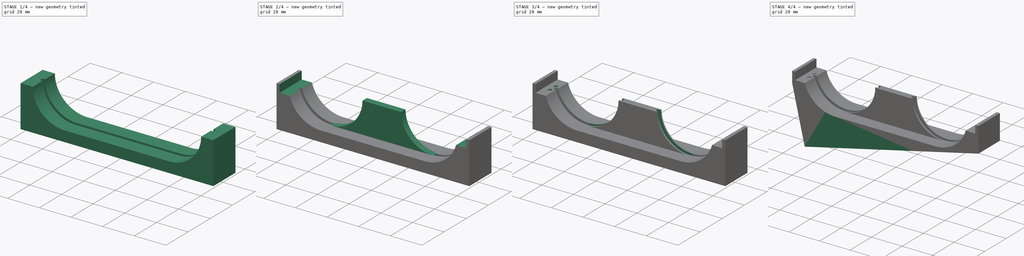
[diagram: build sequence overview — one tinted view per stage of 4, left to right]
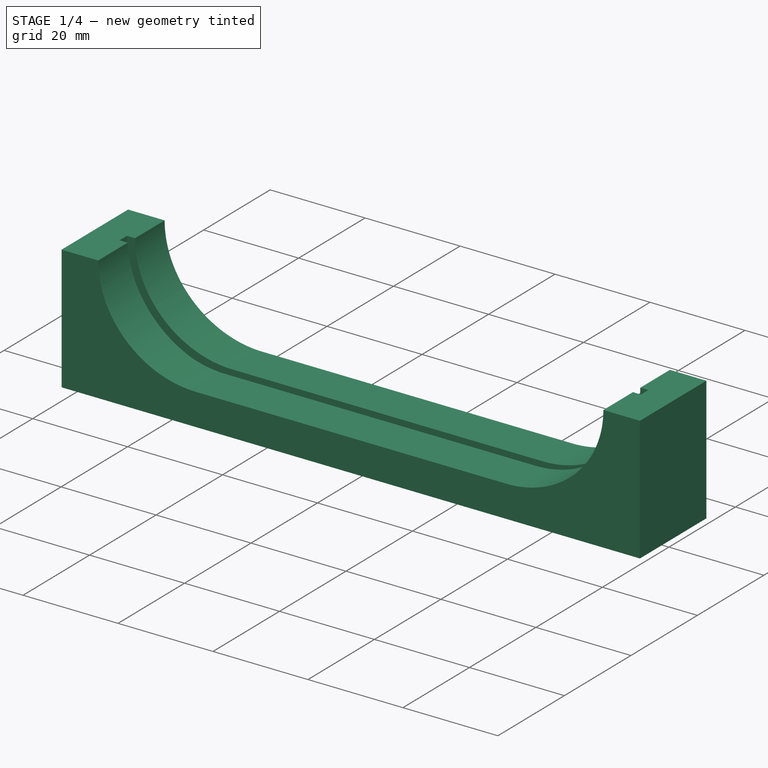
[diagram: stage 1 of 4 — iso view after this stage's code; geometry added in this stage tinted green]
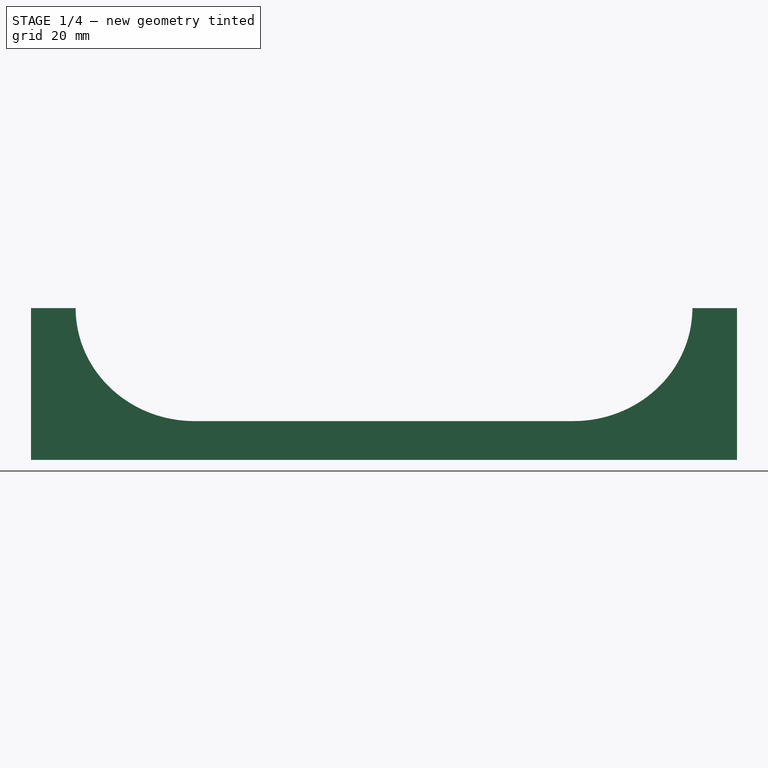
[diagram: stage 1 of 4 — front view after this stage's code; geometry added in this stage tinted green]
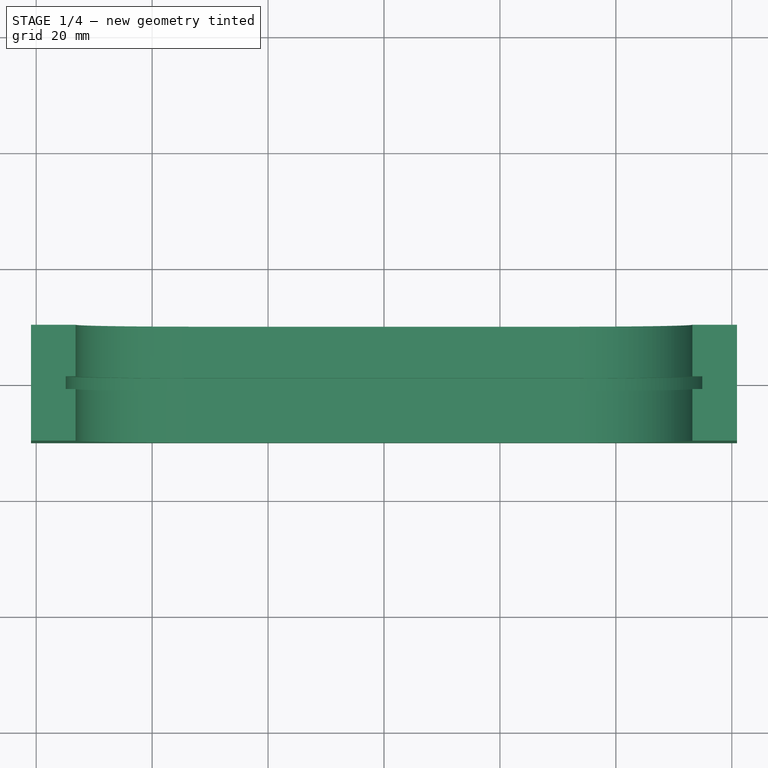
[diagram: stage 1 of 4 — top view after this stage's code; geometry added in this stage tinted green]
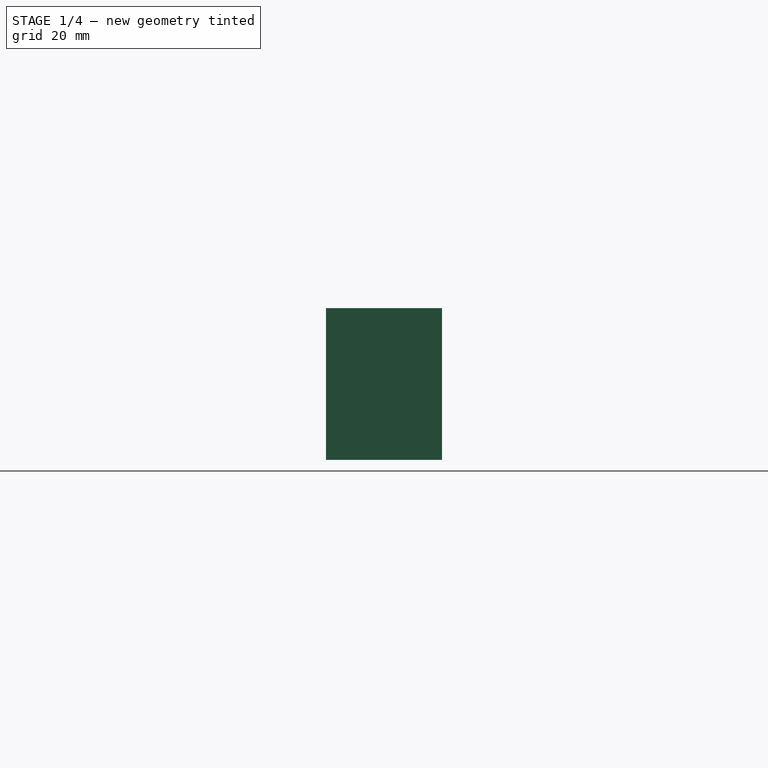
[diagram: stage 1 of 4 — right view after this stage's code; geometry added in this stage tinted green]
FCSTD DOCUMENT  (FreeCAD 1.1R39287 (Git))
Label: hinge_pin_jig
License: All rights reserved
LicenseURL: http://en.wikipedia.org/wiki/All_rights_reserved
objects: Sketcher::SketchObject×5, PartDesign::Pocket×5, PartDesign::Pad×3, PartDesign::Plane×1, PartDesign::Mirrored×1, PartDesign::Body×1
note: 38 computed .brp shape members not serialized (recipe doc carries the construction recipe); baked Part::Feature solids carry a one-line shape summary decoded from their .brp

FEATURE [Sketcher::SketchObject] Sketch  label="Master sketch"
  ArcFitTolerance = 1e-06
  AttachmentSupport = -> [XZ_Plane]
  FullyConstrained = true
  MakeInternals = false
  MapMode = 5
  Placement = pos=(0,0,0) rot=(1,0,0;1.5708rad)
  sketch-geometry (65):
    g0: Ellipse [constr] CenterX=-32.7 CenterY=0 CenterZ=0 NormalX=0 NormalY=0 NormalZ=1 MajorRadius=20 MinorRadius=19 AngleXU=0
    g1: LineSegment [constr] StartX=-12.7 StartY=0 StartZ=0 EndX=-52.7 EndY=0 EndZ=0
    g2: LineSegment [constr] StartX=-32.7 StartY=19 StartZ=0 EndX=-32.7 EndY=-19 EndZ=0
    g3: GeomPoint [constr] X=-26.455 Y=0 Z=0
    g4: GeomPoint [constr] X=-38.945 Y=0 Z=0
    g5: Ellipse [constr] CenterX=32.7 CenterY=0 CenterZ=0 NormalX=0 NormalY=0 NormalZ=1 MajorRadius=20 MinorRadius=19 AngleXU=0
    g6: LineSegment [constr] StartX=52.7 StartY=0 StartZ=0 EndX=12.7 EndY=0 EndZ=0
    g7: LineSegment [constr] StartX=32.7 StartY=19 StartZ=0 EndX=32.7 EndY=-19 EndZ=0
    g8: GeomPoint [constr] X=38.945 Y=0 Z=0
    g9: GeomPoint [constr] X=26.455 Y=0 Z=0
    g10: ArcOfEllipse [constr] CenterX=-32.7 CenterY=0 CenterZ=0 NormalX=0 NormalY=0 NormalZ=1 MajorRadius=22 MinorRadius=21 AngleXU=0 StartAngle=0.410218 EndAngle=6.59162
    g11: LineSegment [constr] StartX=-10.7 StartY=0 StartZ=0 EndX=-54.7 EndY=0 EndZ=0
    g12: LineSegment [constr] StartX=-32.7 StartY=21 StartZ=0 EndX=-32.7 EndY=-21 EndZ=0
    g13: GeomPoint [constr] X=-26.1426 Y=0 Z=0
    g14: GeomPoint [constr] X=-39.2574 Y=0 Z=0
    g15: ArcOfEllipse [constr] CenterX=32.7 CenterY=0 CenterZ=0 NormalX=0 NormalY=0 NormalZ=1 MajorRadius=22 MinorRadius=21 AngleXU=0 StartAngle=2.83315 EndAngle=9.01456
    g16: LineSegment [constr] StartX=54.7 StartY=0 StartZ=0 EndX=10.7 EndY=0 EndZ=0
    g17: LineSegment [constr] StartX=32.7 StartY=21 StartZ=0 EndX=32.7 EndY=-21 EndZ=0
    g18: GeomPoint [constr] X=39.2574 Y=0 Z=0
    g19: GeomPoint [constr] X=26.1426 Y=0 Z=0
    g20: LineSegment [constr] StartX=-11.7382 StartY=6.375 StartZ=0 EndX=11.7382 EndY=6.375 EndZ=0
    g21: LineSegment [constr] StartX=-12.5253 StartY=8.375 StartZ=0 EndX=12.5253 EndY=8.375 EndZ=0
    g22: LineSegment StartX=-57.3543 StartY=5 StartZ=0 EndX=-55.0457 EndY=-5 EndZ=0
    g23: LineSegment [constr] StartX=-54.7 StartY=0 StartZ=0 EndX=-56.2 EndY=0 EndZ=0
    g24: LineSegment StartX=57.3543 StartY=5 StartZ=0 EndX=55.0457 EndY=-5 EndZ=0
    g25: ArcOfEllipse CenterX=-32.7 CenterY=0 CenterZ=0 NormalX=0 NormalY=0 NormalZ=1 MajorRadius=20.5 MinorRadius=19.5 AngleXU=3.14159 StartAngle=0 EndAngle=1.5708
    g26: LineSegment [constr] StartX=-53.2 StartY=0 StartZ=0 EndX=-12.2 EndY=0 EndZ=0
    g27: LineSegment [constr] StartX=-32.7 StartY=-19.5 StartZ=0 EndX=-32.7 EndY=19.5 EndZ=0
    g28: GeomPoint [constr] X=-39.0246 Y=0 Z=0
    g29: GeomPoint [constr] X=-26.3754 Y=0 Z=0
    g30: ArcOfEllipse CenterX=-32.7 CenterY=0 CenterZ=0 NormalX=0 NormalY=0 NormalZ=1 MajorRadius=22.2 MinorRadius=21.2 AngleXU=3.14159 StartAngle=0 EndAngle=1.5708
    g31: LineSegment [constr] StartX=-54.9 StartY=0 StartZ=0 EndX=-10.5 EndY=0 EndZ=0
    g32: LineSegment [constr] StartX=-32.7 StartY=-21.2 StartZ=0 EndX=-32.7 EndY=21.2 EndZ=0
    g33: GeomPoint [constr] X=-39.2879 Y=0 Z=0
    g34: GeomPoint [constr] X=-26.1121 Y=0 Z=0
    g35: LineSegment StartX=-32.7 StartY=-19.5 StartZ=0 EndX=32.7 EndY=-19.5 EndZ=0
    g36: LineSegment StartX=-32.7 StartY=-21.2 StartZ=0 EndX=32.7 EndY=-21.2 EndZ=0
    g37: LineSegment StartX=-54.9 StartY=0 StartZ=0 EndX=-58.9 EndY=0 EndZ=0
    g38: LineSegment StartX=-58.9 StartY=0 StartZ=0 EndX=-60.9 EndY=0 EndZ=0
    g39: LineSegment StartX=58.9 StartY=0 StartZ=0 EndX=60.9 EndY=0 EndZ=0
    g40: ArcOfEllipse CenterX=32.7 CenterY=0 CenterZ=0 NormalX=0 NormalY=0 NormalZ=1 MajorRadius=20.5 MinorRadius=19.5 AngleXU=-2.57947e-08 StartAngle=4.71239 EndAngle=6.28319
    g41: ArcOfEllipse CenterX=32.7 CenterY=0 CenterZ=0 NormalX=0 NormalY=0 NormalZ=1 MajorRadius=22.2 MinorRadius=21.2 AngleXU=6.84414e-06 StartAngle=4.71238 EndAngle=6.28318
    g42: LineSegment StartX=-60.9 StartY=0 StartZ=0 EndX=-60.9 EndY=-26.2 EndZ=0
    g43: LineSegment StartX=60.9 StartY=0 StartZ=0 EndX=60.9 EndY=-26.2 EndZ=0
    g44: LineSegment StartX=-60.9 StartY=-26.2 StartZ=0 EndX=60.9 EndY=-26.2 EndZ=0
    g45: LineSegment StartX=-54.9 StartY=0 StartZ=0 EndX=-53.2 EndY=0 EndZ=0
    g46: LineSegment StartX=54.9 StartY=0 StartZ=0 EndX=58.9 EndY=0 EndZ=0
    g47: LineSegment StartX=54.9 StartY=0 StartZ=0 EndX=53.2 EndY=0 EndZ=0
    g48: ArcOfEllipse CenterX=-32.7 CenterY=0 CenterZ=0 NormalX=0 NormalY=0 NormalZ=1 MajorRadius=22.2 MinorRadius=21.2 AngleXU=4.65521e-08 StartAngle=4.71239 EndAngle=6.28319
    g49: ArcOfEllipse CenterX=32.7 CenterY=0 CenterZ=0 NormalX=0 NormalY=0 NormalZ=1 MajorRadius=22.2 MinorRadius=21.2 AngleXU=-9.61154e-10 StartAngle=3.14159 EndAngle=4.71239
    g50: LineSegment StartX=-10.5 StartY=-7.1e-15 StartZ=0 EndX=10.5 EndY=2.4e-15 EndZ=0
    g51: ArcOfEllipse CenterX=-32.7 CenterY=0 CenterZ=0 NormalX=0 NormalY=0 NormalZ=1 MajorRadius=20.5 MinorRadius=19.5 AngleXU=3.14159 StartAngle=1.5708 EndAngle=3.14159
    g52: LineSegment [constr] StartX=-53.2 StartY=0 StartZ=0 EndX=-12.2 EndY=0 EndZ=0
    g53: LineSegment [constr] StartX=-32.7 StartY=-19.5 StartZ=0 EndX=-32.7 EndY=19.5 EndZ=0
    g54: GeomPoint [constr] X=-39.0246 Y=0 Z=0
    g55: GeomPoint [constr] X=-26.3754 Y=0 Z=0
    g56: LineSegment StartX=-12.2 StartY=-2.4e-15 StartZ=0 EndX=-10.5 EndY=-7.1e-15 EndZ=0
    g57: ArcOfEllipse CenterX=32.7 CenterY=0 CenterZ=0 NormalX=0 NormalY=0 NormalZ=1 MajorRadius=20.5 MinorRadius=19.5 AngleXU=-3.14159 StartAngle=0 EndAngle=1.5708
    g58: LineSegment [constr] StartX=12.2 StartY=0 StartZ=0 EndX=53.2 EndY=5e-15 EndZ=0
    g59: LineSegment [constr] StartX=32.7 StartY=-19.5 StartZ=0 EndX=32.7 EndY=19.5 EndZ=0
    g60: GeomPoint [constr] X=26.3754 Y=0 Z=0
    g61: GeomPoint [constr] X=39.0246 Y=0 Z=0
    g62: LineSegment StartX=10.5 StartY=2.4e-15 StartZ=0 EndX=12.2 EndY=0 EndZ=0
    g63: LineSegment StartX=-32.7 StartY=-19.5 StartZ=0 EndX=-32.7 EndY=-21.2 EndZ=0
    g64: LineSegment StartX=32.7 StartY=-19.5 StartZ=0 EndX=32.7 EndY=-21.2 EndZ=0
  constraints (115):
    c: InternalAlignment(g1-g4 -> g0) x4
    c: PointOnObject(g0,g-1)
    c: Horizontal(g1)
    c: DistanceX(g1,g1) = 40
    c: DistanceY(g2,g2) = 38
    c: InternalAlignment(g6-g9 -> g5) x4
    c: Horizontal(g6)
    c: Equal(g1,g6)
    c: Equal(g7,g2)
    c: Symmetric(g5,g0,g-2)
    c: DistanceX(g0,g5) = 65.4
    c: InternalAlignment(g11-g14 -> g10) x4
    c: Coincident(g10,g0)
    c: Horizontal(g11)
    c: DistanceX(g1,g11) = 2
    c: DistanceY(g12,g2) = 2
    c: InternalAlignment(g16-g19 -> g15) x4
    c: Symmetric(g0,g15,g-2)
    c: Horizontal(g16)
    c: Equal(g16,g11)
    c: Equal(g17,g12)
    c: Horizontal(g10,g15)
    c: Horizontal(g15,g10)
    c: Coincident(g20,g10)
    c: Coincident(g20,g15)
    c: Coincident(g21,g10)
    c: Coincident(g21,g15)
    c: Distance(g20,g21) = 2
    c: Distance(g-1,g20) = 6.375
    c: Coincident(g23,g11)
    c: Horizontal(g23)
    c: Distance(g23,g-2) = 56.2
    c: Symmetric(g22,g22,g23)
    c: Angle(g-2,g22) = 0.226893
    c: Symmetric(g22,g24,g-2)
    c: Symmetric(g22,g24,g-2)
    c: DistanceY(g22,g22) = 10
    c: InternalAlignment(g26-g29 -> g25) x4
    c: Coincident(g25,g0)
    c: PointOnObject(g25,g12)
    c: PointOnObject(g25,g11)
    c: PointOnObject(g26,g-1)
    c: Distance(g25,g1) = 0.5
    c: Distance(g25,g2) = 0.5
    c: InternalAlignment(g31-g34 -> g30) x4
    c: Coincident(g30,g0)
    c: PointOnObject(g31,g-1)
    c: PointOnObject(g30,g-1)
    c: DistanceX(g30,g11) = 0.2
    c: PointOnObject(g30,g2)
    c: Symmetric(g25,g35,g-2)
    c: Symmetric(g30,g36,g-2)
    c: Coincident(g25,g35)
    c: Coincident(g30,g36)
    c: PointOnObject(g37,g-1)
    c: Coincident(g38,g37)
    c: PointOnObject(g38,g-1)
    c: DistanceX(g37,g23) = 2.7
    c: DistanceX(g38,g37) = 2
    c: Symmetric(g38,g39,g-2)
    c: Symmetric(g38,g39,g-2)
    c: Coincident(g40,g35)
    c: Equal(g40,g25)
    c: PointOnObject(g40,g-1)
    c: Coincident(g36,g41)
    c: Symmetric(g30,g41,g-2)
    c: Equal(g41,g30)
    c: PointOnObject(g41,g-1)
    c: Coincident(g42,g38)
    c: Vertical(g42)
    c: Coincident(g43,g39)
    c: Vertical(g43)
    c: Distance(g44,g36) = 5
    c: Coincident(g44,g42)
    c: Horizontal(g44)
    c: Coincident(g43,g44)
    c: Coincident(g30,g37)
    c: Coincident(g45,g30)
    c: Coincident(g45,g25)
    c: Symmetric(g37,g46,g-2)
    c: Symmetric(g37,g46,g-2)
    c: Symmetric(g45,g47,g-2)
    c: Symmetric(g45,g47,g-2)
    c: Symmetric(g40,g25,g-2)
    c: Coincident(g48,g0)
    c: Coincident(g48,g30)
    c: PointOnObject(g48,g-1)
    c: Equal(g30,g48)
    c: Coincident(g49,g40)
    c: Distance(g12,g30) = 0.2
    c: Coincident(g49,g36)
    c: PointOnObject(g49,g-1)
    c: Equal(g30,g49)
    c: Coincident(g50,g48)
    c: Coincident(g50,g49)
    c: InternalAlignment(g52-g55 -> g51) x4
    c: Coincident(g51,g0)
    c: Coincident(g25,g52)
    c: PointOnObject(g53,g25)
    c: PointOnObject(g51,g2)
    c: PointOnObject(g51,g1)
    c: Coincident(g56,g51)
    c: Coincident(g56,g48)
    c: InternalAlignment(g58-g61 -> g57) x4
    c: Coincident(g57,g41)
    c: Coincident(g58,g40)
    c: PointOnObject(g59,g40)
    c: PointOnObject(g57,g7)
    c: PointOnObject(g57,g6)
    c: Coincident(g62,g49)
    c: Coincident(g62,g57)
    c: Coincident(g63,g51)
    c: Coincident(g63,g30)
    c: Coincident(g64,g57)
    c: Coincident(g64,g36)
FEATURE [PartDesign::Pad] Pad  label="Main body"
  Direction = (0,-1,2e-16)
  Length = 20
  Length2 = 10
  Midplane = true
  Placement = pos=(0,0,0) rot=(1,0,0;1.5708rad)
  Profile = -> Sketch [Edge13,Edge14,Edge3,Edge4,Edge5,Edge12,Edge11,Edge6,Edge7,Edge8,Edge9,Edge10]
  ReferenceAxis = -> Sketch [N_Axis]
  Refine = true
  Suppressed = false
  Type = 0
FEATURE [PartDesign::Pocket] Pocket  label="Frame cradle"
  BaseFeature = -> Pad
  Direction = (0,1,-2e-16)
  Length = 2.2
  Length2 = 5
  Midplane = true
  Placement = pos=(0,0,0) rot=(1,0,0;1.5708rad)
  Profile = -> Sketch [Edge15,Edge3,Edge4,Edge16,Edge5,Edge6,Edge17,Edge7]
  ReferenceAxis = -> Sketch [N_Axis]
  Refine = true
  Suppressed = false
  Type = 0
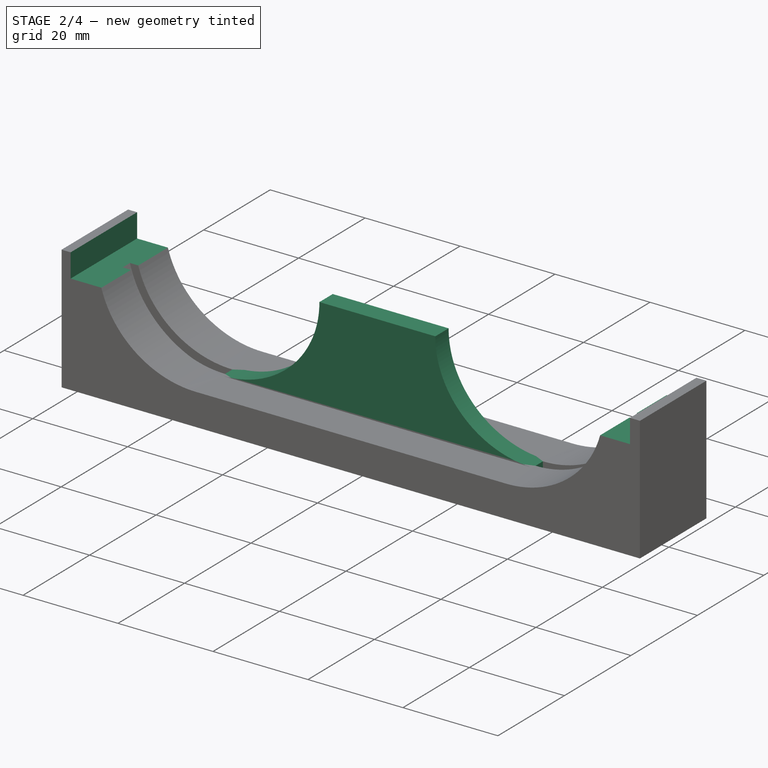
[diagram: stage 2 of 4 — iso view after this stage's code; geometry added in this stage tinted green]
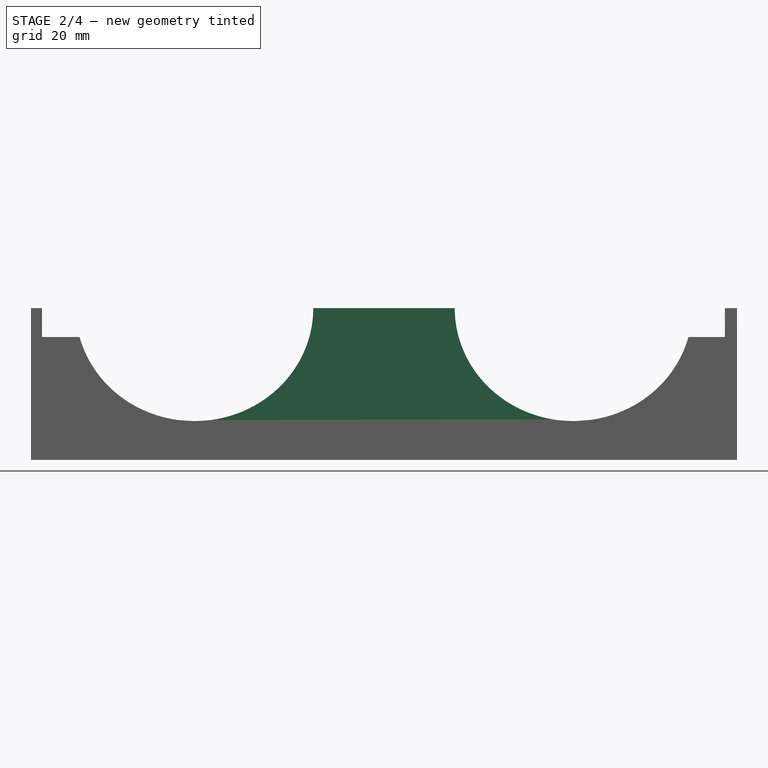
[diagram: stage 2 of 4 — front view after this stage's code; geometry added in this stage tinted green]
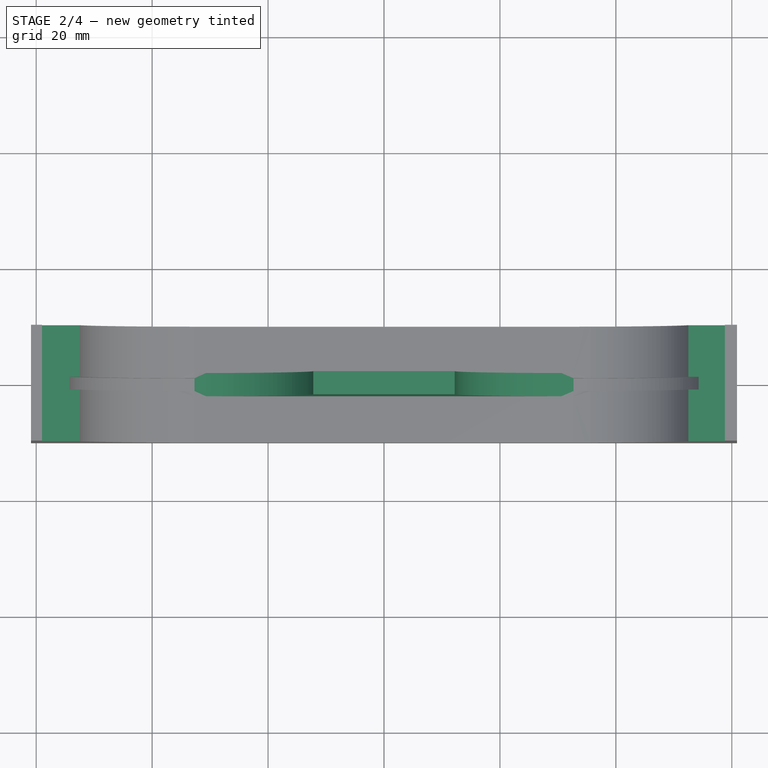
[diagram: stage 2 of 4 — top view after this stage's code; geometry added in this stage tinted green]
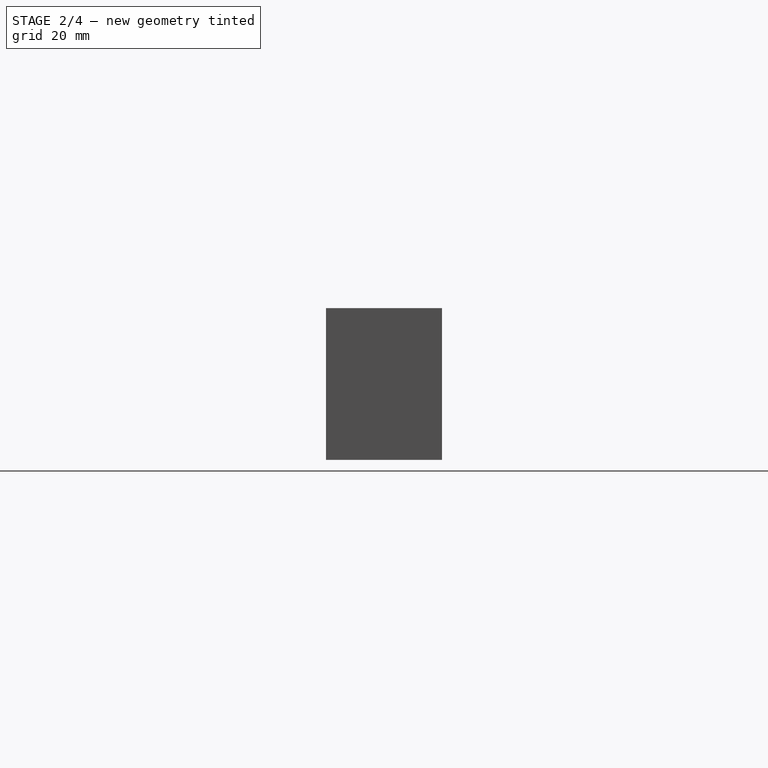
[diagram: stage 2 of 4 — right view after this stage's code; geometry added in this stage tinted green]
FEATURE [Sketcher::SketchObject] Sketch001
  ArcFitTolerance = 1e-06
  AttachmentSupport = -> [XZ_Plane]
  ExternalGeometry = -> [Sketch]
  FullyConstrained = true
  MakeInternals = false
  MapMode = 5
  Placement = pos=(0,0,0) rot=(1,0,0;1.5708rad)
  sketch-geometry (6):
    g0: LineSegment StartX=-59 StartY=0 StartZ=0 EndX=-58.9 EndY=0 EndZ=0
    g1: LineSegment StartX=-58.9 StartY=0 StartZ=0 EndX=58.9 EndY=0 EndZ=0
    g2: LineSegment StartX=58.9 StartY=0 StartZ=0 EndX=58.8 EndY=0 EndZ=0
    g3: LineSegment StartX=-59 StartY=0 StartZ=0 EndX=-59 EndY=-5 EndZ=0
    g4: LineSegment StartX=-59 StartY=-5 StartZ=0 EndX=58.8 EndY=-5 EndZ=0
    g5: LineSegment StartX=58.8 StartY=-5 StartZ=0 EndX=58.8 EndY=0 EndZ=0
  constraints (16):
    c: PointOnObject(g0,g-1)
    c: Coincident(g0,g-3)
    c: Coincident(g1,g0)
    c: Coincident(g1,g-4)
    c: Coincident(g2,g1)
    c: PointOnObject(g2,g-1)
    c: Equal(g2,g0)
    c: Distance(g0,g0) = 0.1
    c: Coincident(g3,g0)
    c: Vertical(g3)
    c: Coincident(g4,g3)
    c: Horizontal(g4)
    c: Coincident(g5,g4)
    c: Coincident(g5,g2)
    c: PointOnObject(g-5,g4)
    c: Vertical(g5)
FEATURE [PartDesign::Pocket] Pocket001  label="Hinges resting surfaces"
  BaseFeature = -> Pocket
  Direction = (0,1,-2e-16)
  Length = 5
  Length2 = 5
  Midplane = true
  Placement = pos=(0,0,0) rot=(1,0,0;1.5708rad)
  Profile = -> Sketch001
  ReferenceAxis = -> Sketch001 [N_Axis]
  Suppressed = false
  Type = 1
FEATURE [PartDesign::Plane] DatumPlane  label="Left hinge pin catch holes extrusion plane"
  AttachmentSupport = -> [Sketch]
  Length = 66.363
  MapMode = 7
  Placement = pos=(-57.3543,1.1e-15,5) rot=(0.112485,-0.112485,-0.987266;1.58361rad)
  ResizeMode = 0
  Width = 150.237
FEATURE [Sketcher::SketchObject] Sketch002
  ArcFitTolerance = 1e-06
  AttachmentSupport = -> [DatumPlane]
  FullyConstrained = true
  MakeInternals = false
  MapMode = 5
  Placement = pos=(-57.3543,1.1e-15,5) rot=(0.112485,-0.112485,-0.987266;1.58361rad)
  sketch-geometry (2):
    g0: Circle CenterX=-2.5 CenterY=0 CenterZ=0 NormalX=0 NormalY=0 NormalZ=1 AngleXU=0 Radius=1.1
    g1: Circle CenterX=2.5 CenterY=0 CenterZ=0 NormalX=0 NormalY=0 NormalZ=1 AngleXU=0 Radius=1.1
  constraints (5):
    c: PointOnObject(g0,g-1)
    c: Equal(g0,g1)
    c: Symmetric(g0,g1,g-2)
    c: Distance(g0,g-1) = 2.5
    c: Diameter(g0) = 2.2
FEATURE [PartDesign::Pad] Pad003  label="Center frame support #1"
  BaseFeature = -> Pocket001
  Direction = (0,-1,0)
  Length = 4
  Length2 = 10
  Midplane = true
  Placement = pos=(0,0,0) rot=(1,0,0;1.5708rad)
  Profile = -> Sketch [Edge25,Edge24,Edge16,Edge18,Edge21,Edge20,Edge22,Edge26]
  ReferenceAxis = -> Sketch [N_Axis]
  Refine = true
  Suppressed = false
  Type = 0
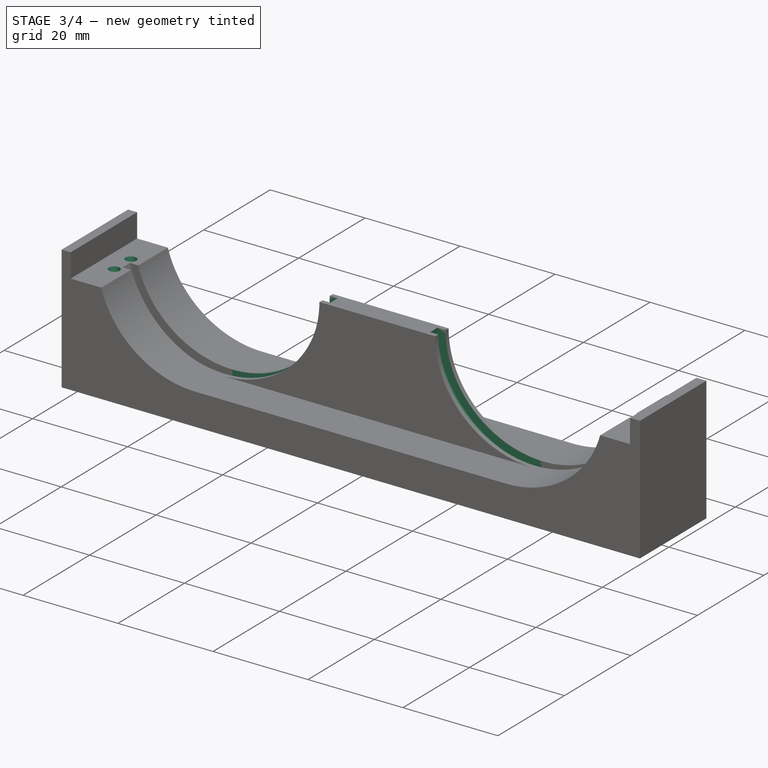
[diagram: stage 3 of 4 — iso view after this stage's code; geometry added in this stage tinted green]
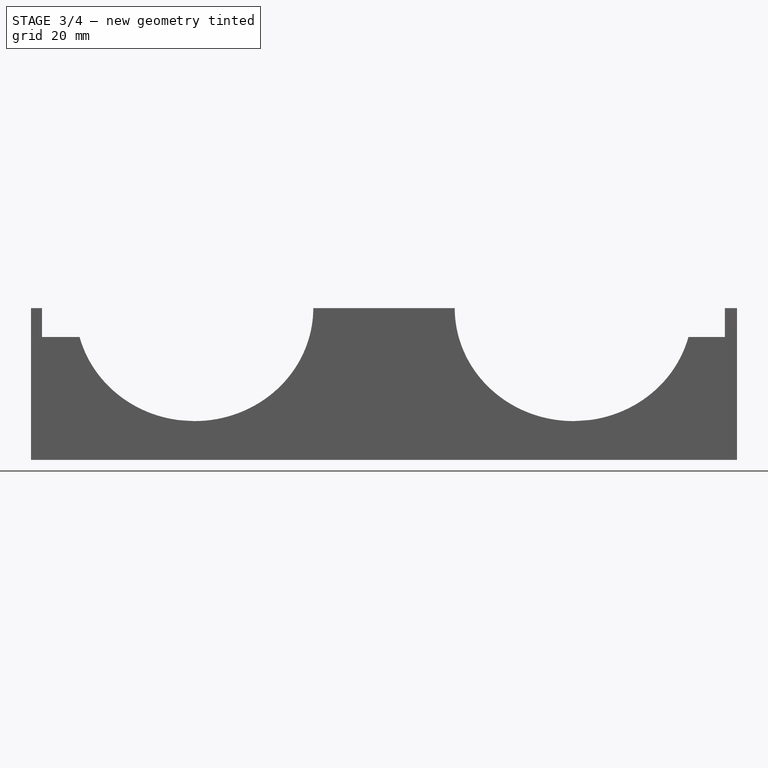
[diagram: stage 3 of 4 — front view after this stage's code; geometry added in this stage tinted green]
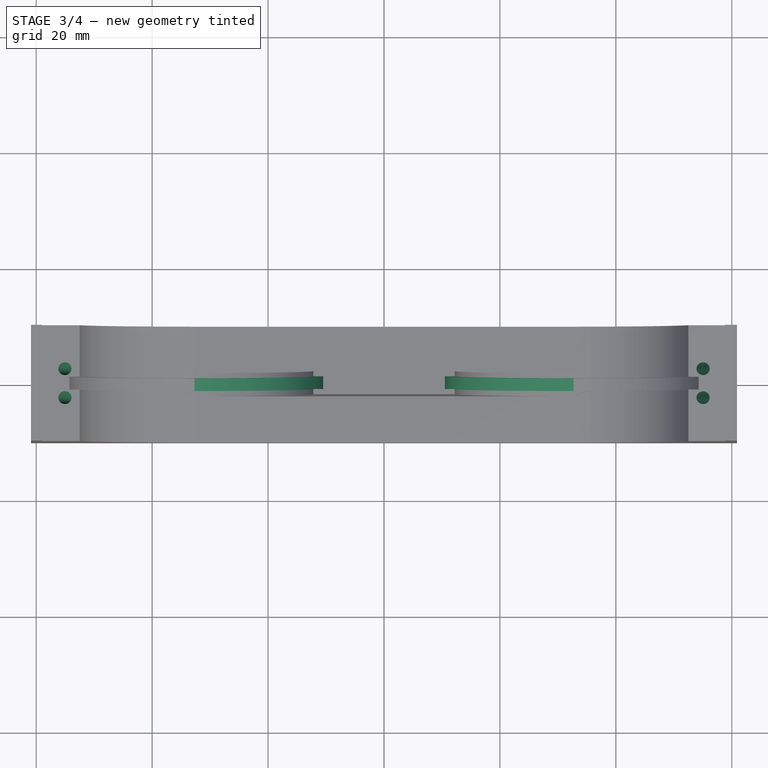
[diagram: stage 3 of 4 — top view after this stage's code; geometry added in this stage tinted green]
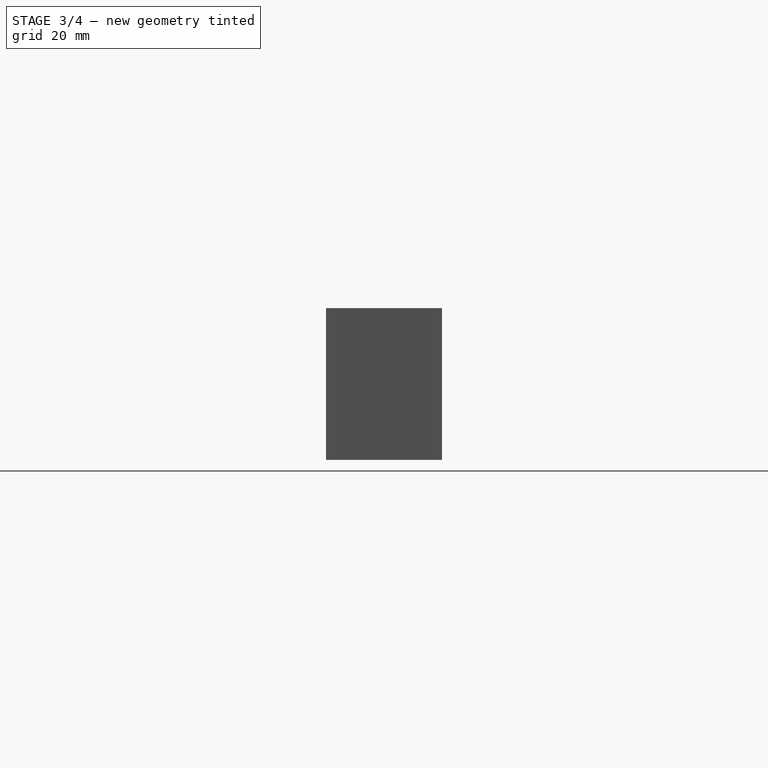
[diagram: stage 3 of 4 — right view after this stage's code; geometry added in this stage tinted green]
FEATURE [PartDesign::Pocket] Pocket004  label="Center frame support #2"
  BaseFeature = -> Pad003
  Direction = (1,1,1)
  Length = 2.2
  Length2 = 5
  Midplane = true
  Placement = pos=(0,0,0) rot=(1,0,0;1.5708rad)
  Profile = -> Sketch [Edge24,Edge25,Edge23,Edge26,Edge19,Edge21,Edge20,Edge18]
  ReferenceAxis = -> Sketch [N_Axis]
  Refine = true
  Suppressed = false
  Type = 0
FEATURE [PartDesign::Pocket] Pocket002  label="Left hinge pin catch holes"
  BaseFeature = -> Pocket004
  Direction = (0.224951,0,-0.97437)
  Length = 22
  Length2 = 5
  Placement = pos=(0,0,0) rot=(1,0,0;1.5708rad)
  Profile = -> Sketch002
  ReferenceAxis = -> Sketch002 [N_Axis]
  Refine = true
  Suppressed = false
  Type = 0
FEATURE [PartDesign::Mirrored] Mirrored  label="Right hinge pin catch holes"
  BaseFeature = -> Pocket002
  MirrorPlane = -> YZ_Plane
  Originals = -> [Pocket002]
  Placement = pos=(0,0,0) rot=(1,0,0;1.5708rad)
  Suppressed = false
  TransformMode = 0
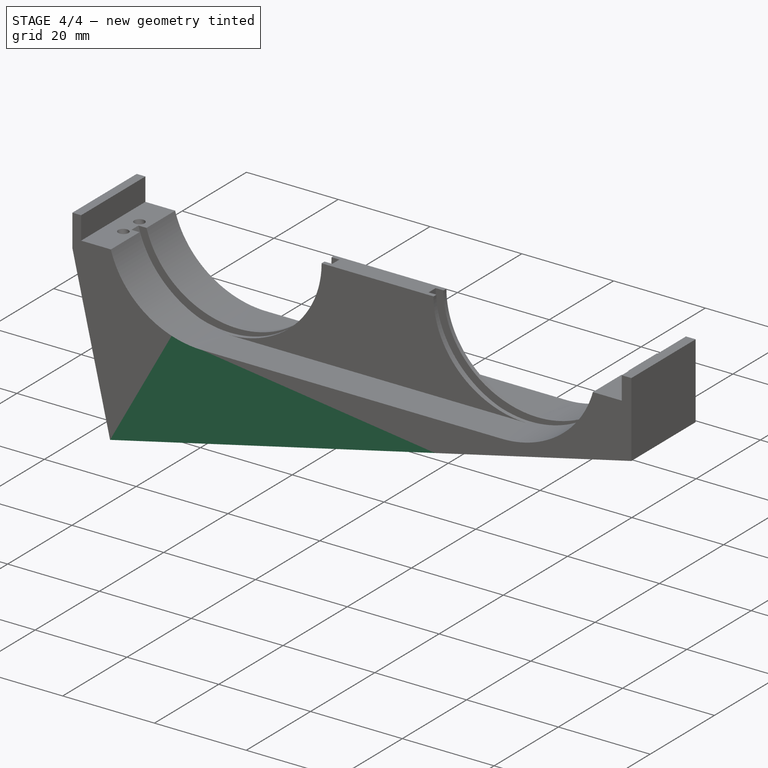
[diagram: stage 4 of 4 — iso view after this stage's code; geometry added in this stage tinted green]
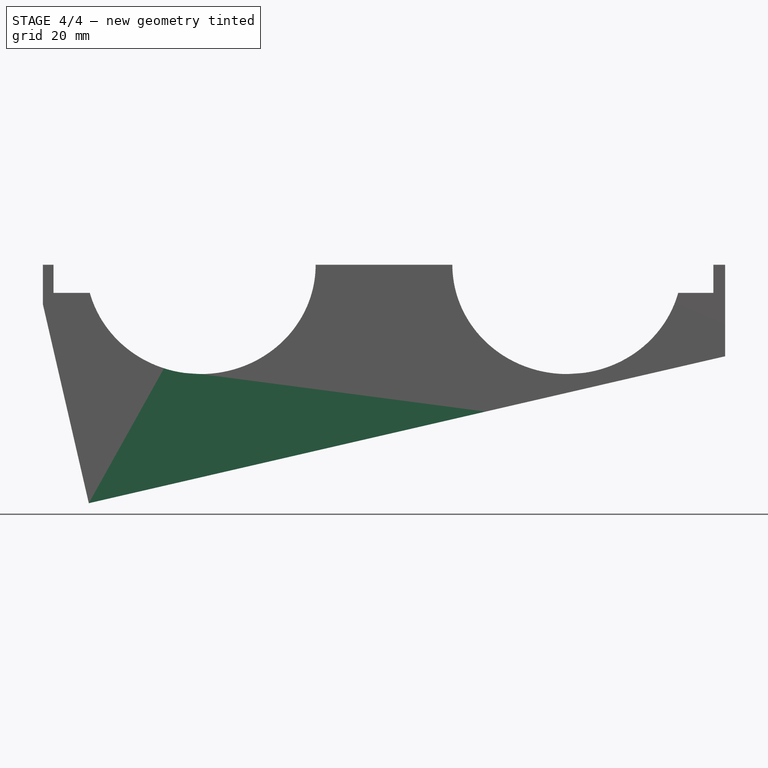
[diagram: stage 4 of 4 — front view after this stage's code; geometry added in this stage tinted green]
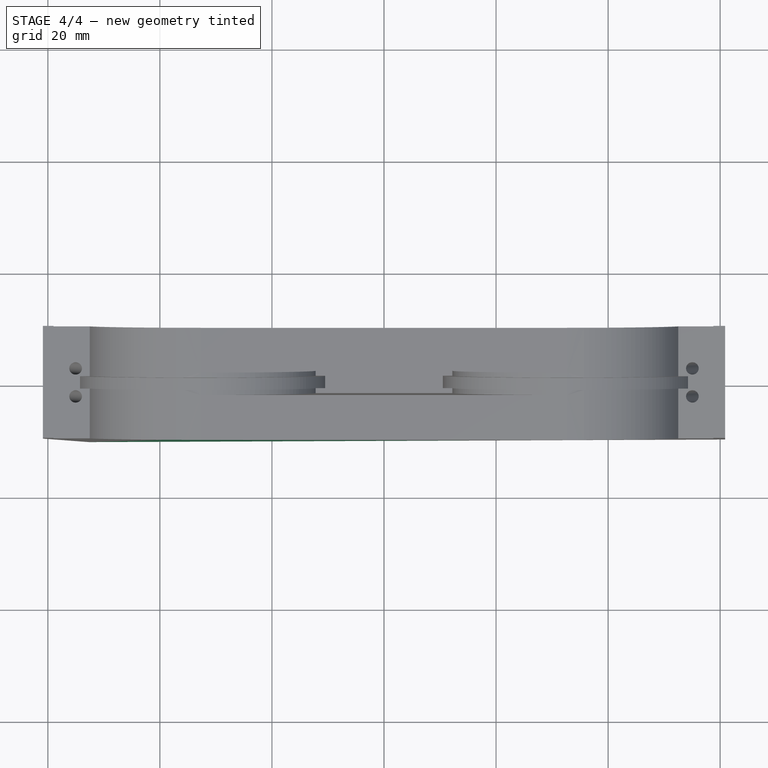
[diagram: stage 4 of 4 — top view after this stage's code; geometry added in this stage tinted green]
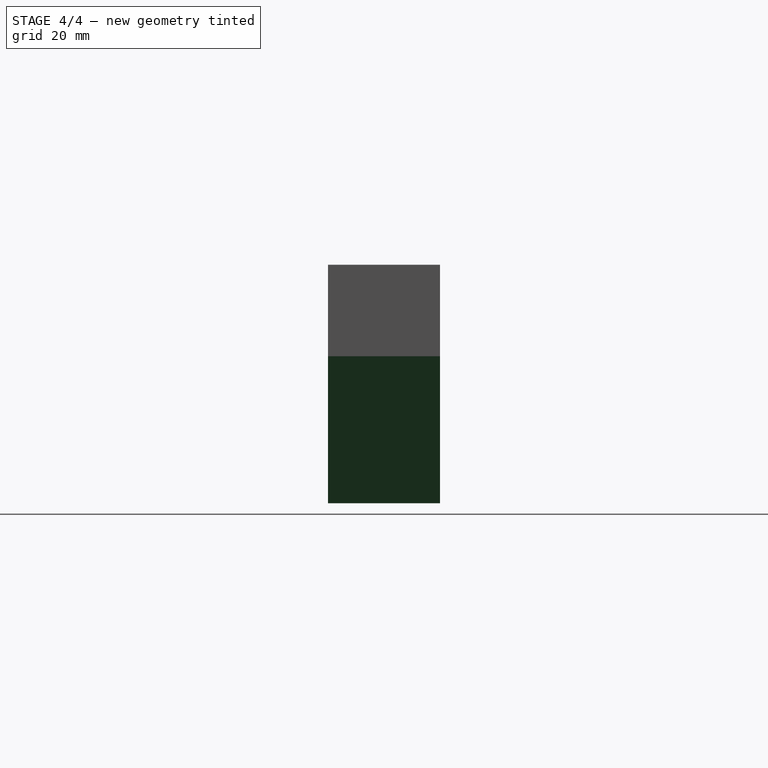
[diagram: stage 4 of 4 — right view after this stage's code; geometry added in this stage tinted green]
FEATURE [Sketcher::SketchObject] Sketch003
  ArcFitTolerance = 1e-06
  AttachmentSupport = -> [Mirrored]
  ExternalGeometry = -> [Sketch]
  FullyConstrained = true
  MakeInternals = false
  MapMode = 5
  Placement = pos=(0,-10,0) rot=(1,0,0;1.5708rad)
  sketch-geometry (5):
    g0: LineSegment [constr] StartX=60.9 StartY=-16.3266 StartZ=0 EndX=18.1334 EndY=-26.2 EndZ=0
    g1: LineSegment StartX=18.1334 StartY=-26.2 StartZ=0 EndX=-60.9 EndY=-26.2 EndZ=0
    g2: LineSegment StartX=18.1334 StartY=-26.2 StartZ=0 EndX=-60.9 EndY=-44.4463 EndZ=0
    g3: LineSegment StartX=-60.9 StartY=-26.2 StartZ=0 EndX=-60.9 EndY=-44.4463 EndZ=0
    g4: LineSegment [constr] StartX=37.9167 StartY=-20.6064 StartZ=0 EndX=60.9 EndY=-15.3003 EndZ=0
  constraints (14):
    c: PointOnObject(g0,g-3)
    c: Coincident(g1,g0)
    c: Coincident(g1,g-4)
    c: Horizontal(g1)
    c: Coincident(g2,g0)
    c: Coincident(g3,g1)
    c: Coincident(g3,g2)
    c: Vertical(g3)
    c: Parallel(g0,g2)
    c: Tangent(g4,g-5) = -1.5708
    c: Parallel(g4,g0)
    c: PointOnObject(g4,g-3)
    c: Distance(g4,g0) = 1
    c: Perpendicular(g2,g-6)
FEATURE [PartDesign::Pad] Pad002  label="Angled based #1"
  BaseFeature = -> Mirrored
  Direction = (0,-1,2e-16)
  Length = 10
  Length2 = 10
  Placement = pos=(0,0,0) rot=(1,0,0;1.5708rad)
  Profile = -> Sketch003
  ReferenceAxis = -> Sketch003 [N_Axis]
  Refine = true
  Suppressed = false
  Type = 3
  UpToFace = -> Mirrored [Face2]
  UpToShape = -> [Mirrored]
FEATURE [Sketcher::SketchObject] Sketch004
  ArcFitTolerance = 1e-06
  AttachmentSupport = -> [Pad002]
  ExternalGeometry = -> [Sketch003,Pad002]
  FullyConstrained = true
  MakeInternals = false
  MapMode = 5
  Placement = pos=(0,-10,3e-15) rot=(1,0,0;1.5708rad)
  sketch-geometry (6):
    g0: LineSegment StartX=18.1334 StartY=-26.2 StartZ=0 EndX=60.9 EndY=-16.3266 EndZ=0
    g1: LineSegment StartX=18.1334 StartY=-26.2 StartZ=0 EndX=60.9 EndY=-26.2 EndZ=0
    g2: LineSegment StartX=60.9 StartY=-16.3266 StartZ=0 EndX=60.9 EndY=-26.2 EndZ=0
    g3: LineSegment StartX=-60.9 StartY=-44.4463 StartZ=0 EndX=-60.9 EndY=-7 EndZ=0
    g4: LineSegment StartX=-60.9 StartY=-7 StartZ=0 EndX=-52.6923 EndY=-42.5514 EndZ=0
    g5: LineSegment StartX=-60.9 StartY=-44.4463 StartZ=0 EndX=-52.6923 EndY=-42.5514 EndZ=0
  constraints (15):
    c: Coincident(g-3,g0)
    c: PointOnObject(g0,g-4)
    c: Parallel(g-3,g0)
    c: Coincident(g1,g0)
    c: Coincident(g1,g-4)
    c: Coincident(g2,g0)
    c: Coincident(g2,g-4)
    c: Coincident(g-3,g3)
    c: Vertical(g3)
    c: Distance(g3,g-5) = 2
    c: Coincident(g4,g3)
    c: PointOnObject(g4,g-3)
    c: Perpendicular(g4,g-3)
    c: Coincident(g5,g3)
    c: Coincident(g5,g4)
FEATURE [PartDesign::Pocket] Pocket003  label="Angled base #2"
  BaseFeature = -> Pad002
  Direction = (0,1,-2e-16)
  Length = 5
  Length2 = 5
  Placement = pos=(0,0,0) rot=(1,0,0;1.5708rad)
  Profile = -> Sketch004
  ReferenceAxis = -> Sketch004 [N_Axis]
  Suppressed = false
  Type = 1
FEATURE [PartDesign::Body] Body
  AllowCompound = false
  Group = -> [Sketch,Pad,Pocket,Sketch001,Pocket001,DatumPlane,Sketch002,Pad003,Pocket004,Pocket002,Mirrored,Sketch003,Pad002,Sketch004,Pocket003]
  Origin = -> Origin
  Tip = -> Pocket003
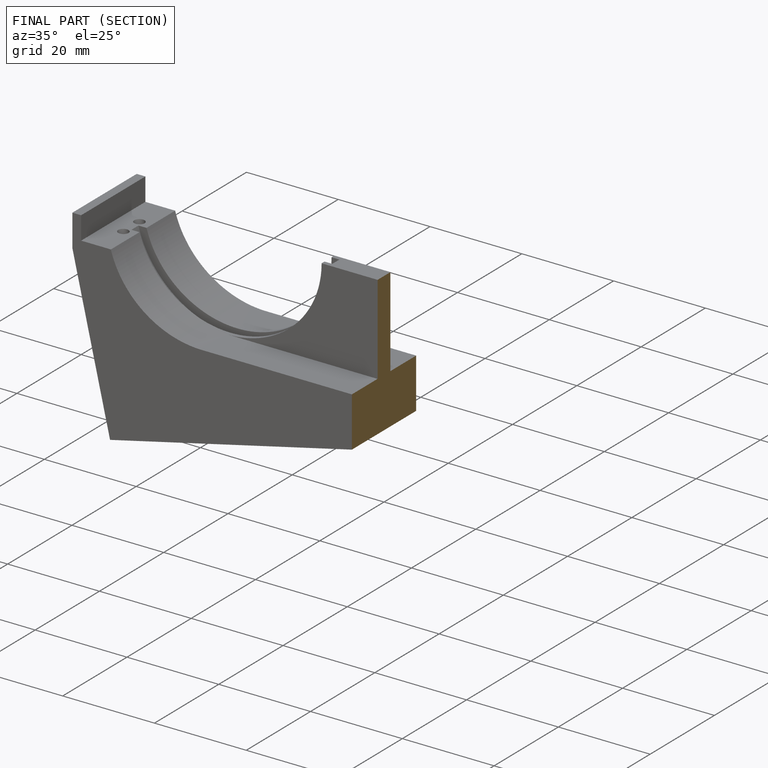
[diagram: finished part — half-section view (interior)]
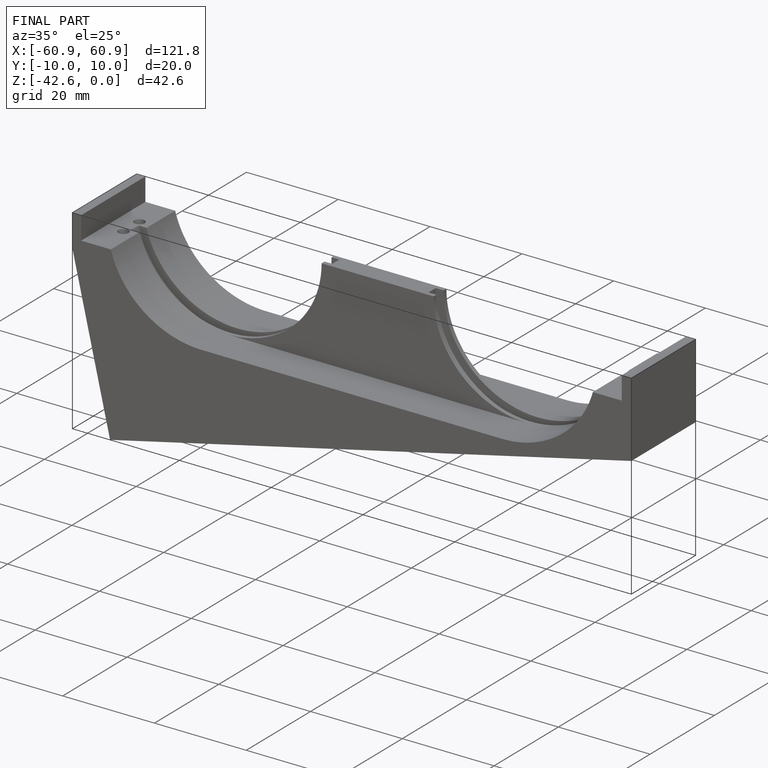
[diagram: finished part — iso view with bounding-box wireframe]
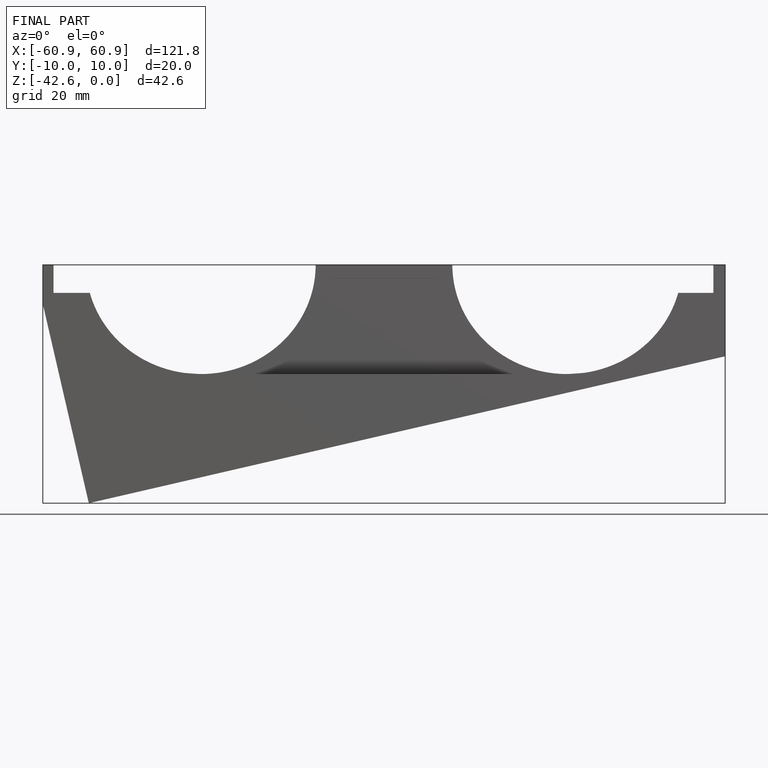
[diagram: finished part — front view with bounding-box wireframe]
